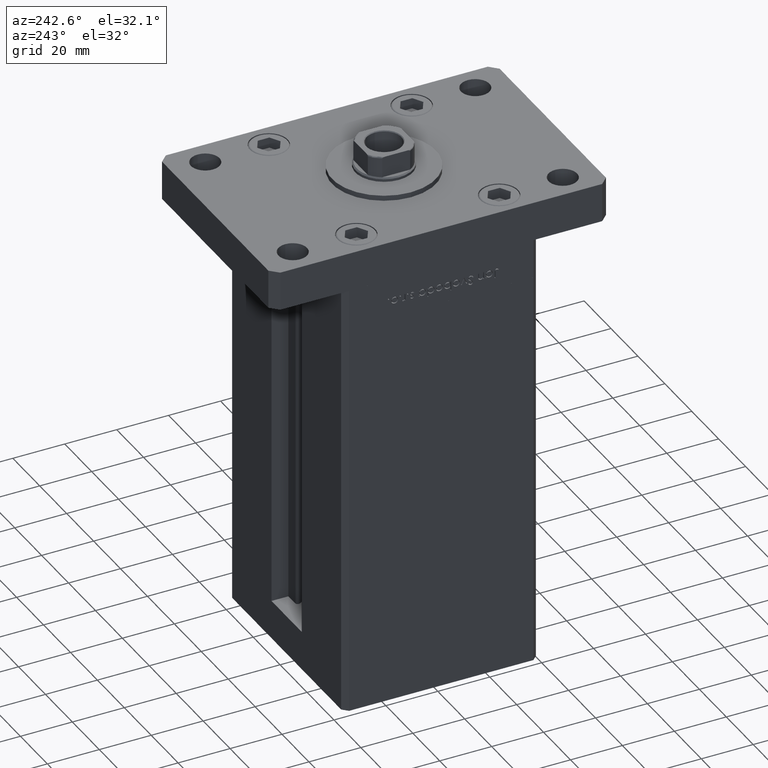
[diagram: clean part render]
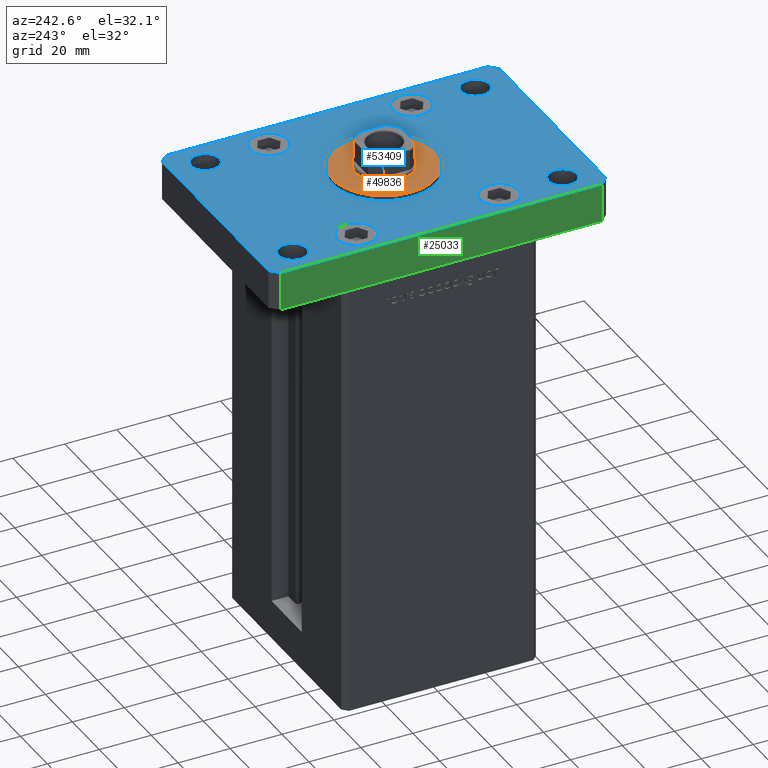
[diagram: same view with three faces highlighted in distinct colors, each labeled with its STEP entity id]
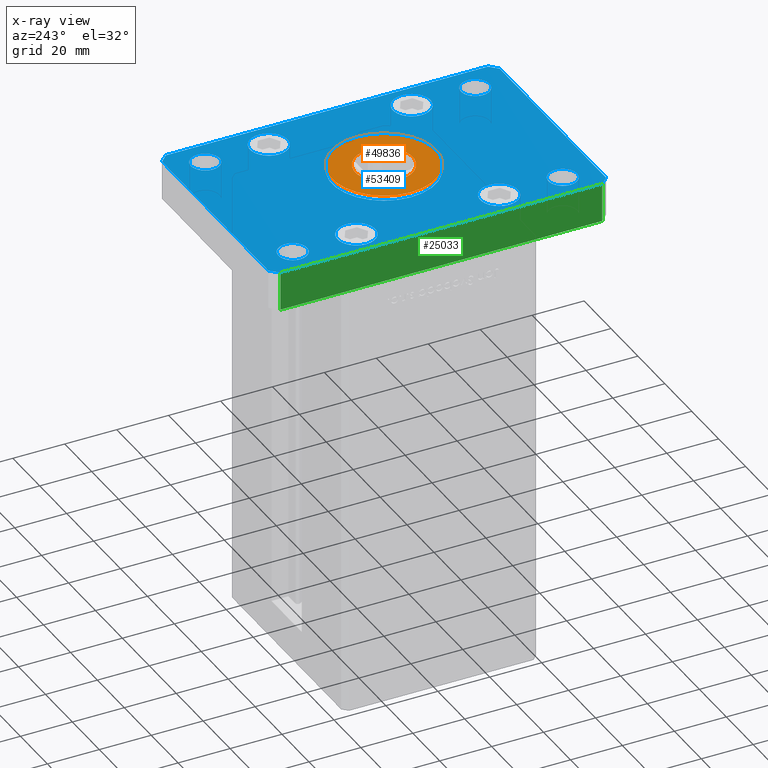
[diagram: x-ray of the same camera — body ghosted, the three highlighted faces saturated]
A machine part, auxiliary view with three faces highlighted in distinct colors.
The next image is the same camera in x-ray (body ghosted, the three faces saturated) — at least one of them is partly hidden behind the body in this view.
Their STEP definitions:

[orange] entity #49836 — the highlighted planar face has unit normal (0, 0, 1).
#1839 = DIRECTION ( 'NONE',  ( 1.000000000000000000, 0.000000000000000000, 0.000000000000000000 ) ) ;
#3969 = EDGE_CURVE ( 'NONE', #11316, #16303, #19559, .T. ) ;
#5047 = CARTESIAN_POINT ( 'NONE',  ( 0.000000000000000000, 0.000000000000000000, 17.00000000000000000 ) ) ;
#5620 = DIRECTION ( 'NONE',  ( 0.000000000000000000, 0.000000000000000000, 1.000000000000000000 ) ) ;
#8450 = CARTESIAN_POINT ( 'NONE',  ( 0.000000000000000000, 0.000000000000000000, 17.00000000000000000 ) ) ;
#9641 = AXIS2_PLACEMENT_3D ( 'NONE', #30692, #47220, #26620 ) ;
#10873 = AXIS2_PLACEMENT_3D ( 'NONE', #34671, #5620, #38727 ) ;
#11303 = VERTEX_POINT ( 'NONE', #46637 ) ;
#11316 = VERTEX_POINT ( 'NONE', #18143 ) ;
#11474 = CARTESIAN_POINT ( 'NONE',  ( 11.00000000000000000, 0.000000000000000000, 17.00000000000000000 ) ) ;
#11533 = EDGE_LOOP ( 'NONE', ( #14000, #23340 ) ) ;
#12253 = PLANE ( 'NONE',  #20652 ) ;
#12850 = EDGE_LOOP ( 'NONE', ( #46328, #25699 ) ) ;
#14000 = ORIENTED_EDGE ( 'NONE', *, *, #24984, .F. ) ;
#15807 = DIRECTION ( 'NONE',  ( 0.000000000000000000, 0.000000000000000000, 1.000000000000000000 ) ) ;
#16303 = VERTEX_POINT ( 'NONE', #11474 ) ;
#18143 = CARTESIAN_POINT ( 'NONE',  ( -11.00000000000000000, 1.347111479062088405E-15, 17.00000000000000000 ) ) ;
#19559 = CIRCLE ( 'NONE', #10873, 11.00000000000000000 ) ;
#20652 = AXIS2_PLACEMENT_3D ( 'NONE', #8450, #15807, #33419 ) ;
#22632 = CIRCLE ( 'NONE', #9641, 11.00000000000000000 ) ;
#23340 = ORIENTED_EDGE ( 'NONE', *, *, #3969, .F. ) ;
#23537 = CIRCLE ( 'NONE', #26977, 20.00000000000000000 ) ;
#24984 = EDGE_CURVE ( 'NONE', #16303, #11316, #22632, .T. ) ;
#25157 = DIRECTION ( 'NONE',  ( 1.000000000000000000, 0.000000000000000000, 0.000000000000000000 ) ) ;
#25401 = EDGE_CURVE ( 'NONE', #30827, #11303, #23537, .T. ) ;
#25417 = DIRECTION ( 'NONE',  ( 0.000000000000000000, 0.000000000000000000, 1.000000000000000000 ) ) ;
#25699 = ORIENTED_EDGE ( 'NONE', *, *, #37456, .T. ) ;
#26620 = DIRECTION ( 'NONE',  ( 1.000000000000000000, 0.000000000000000000, 0.000000000000000000 ) ) ;
#26977 = AXIS2_PLACEMENT_3D ( 'NONE', #5047, #25417, #25157 ) ;
#28968 = AXIS2_PLACEMENT_3D ( 'NONE', #43341, #42785, #1839 ) ;
#30692 = CARTESIAN_POINT ( 'NONE',  ( 0.000000000000000000, 0.000000000000000000, 17.00000000000000000 ) ) ;
#30827 = VERTEX_POINT ( 'NONE', #33535 ) ;
#32629 = FACE_OUTER_BOUND ( 'NONE', #12850, .T. ) ;
#33419 = DIRECTION ( 'NONE',  ( 1.000000000000000000, 0.000000000000000000, -0.000000000000000000 ) ) ;
#33535 = CARTESIAN_POINT ( 'NONE',  ( -20.00000000000000000, 0.000000000000000000, 17.00000000000000000 ) ) ;
#34671 = CARTESIAN_POINT ( 'NONE',  ( 0.000000000000000000, 0.000000000000000000, 17.00000000000000000 ) ) ;
#37456 = EDGE_CURVE ( 'NONE', #11303, #30827, #42828, .T. ) ;
#38727 = DIRECTION ( 'NONE',  ( 1.000000000000000000, 0.000000000000000000, 0.000000000000000000 ) ) ;
#42785 = DIRECTION ( 'NONE',  ( 0.000000000000000000, 0.000000000000000000, 1.000000000000000000 ) ) ;
#42828 = CIRCLE ( 'NONE', #28968, 20.00000000000000000 ) ;
#43341 = CARTESIAN_POINT ( 'NONE',  ( 0.000000000000000000, 0.000000000000000000, 17.00000000000000000 ) ) ;
#46328 = ORIENTED_EDGE ( 'NONE', *, *, #25401, .T. ) ;
#46637 = CARTESIAN_POINT ( 'NONE',  ( 20.00000000000000000, 2.449293598294706513E-15, 17.00000000000000000 ) ) ;
#47220 = DIRECTION ( 'NONE',  ( 0.000000000000000000, 0.000000000000000000, 1.000000000000000000 ) ) ;
#49836 = ADVANCED_FACE ( 'NONE', ( #53497, #32629 ), #12253, .T. ) ;
#53497 = FACE_BOUND ( 'NONE', #11533, .T. ) ;

[blue] entity #53409 — the highlighted planar face has unit normal (0, 0, 1).
#229 = LINE ( 'NONE', #12172, #40080 ) ;
#610 = FACE_BOUND ( 'NONE', #48539, .T. ) ;
#877 = FACE_BOUND ( 'NONE', #21882, .T. ) ;
#1103 = ORIENTED_EDGE ( 'NONE', *, *, #9711, .F. ) ;
#1421 = CIRCLE ( 'NONE', #50791, 7.249999999999999112 ) ;
#1469 = VERTEX_POINT ( 'NONE', #15718 ) ;
#1535 = ORIENTED_EDGE ( 'NONE', *, *, #31959, .F. ) ;
#1682 = DIRECTION ( 'NONE',  ( 0.000000000000000000, 0.000000000000000000, 1.000000000000000000 ) ) ;
#1955 = CARTESIAN_POINT ( 'NONE',  ( -26.99999999999998579, -52.00000000000000711, 15.00000000000000000 ) ) ;
#2109 = LINE ( 'NONE', #22191, #22864 ) ;
#2379 = EDGE_CURVE ( 'NONE', #17453, #31639, #40131, .T. ) ;
#2486 = EDGE_LOOP ( 'NONE', ( #20255, #27263 ) ) ;
#2552 = EDGE_CURVE ( 'NONE', #15432, #29417, #17856, .T. ) ;
#2767 = CARTESIAN_POINT ( 'NONE',  ( -39.75000000000000711, 27.50000000000000000, 15.00000000000000000 ) ) ;
#3219 = CIRCLE ( 'NONE', #33549, 7.249999999999999112 ) ;
#3872 = AXIS2_PLACEMENT_3D ( 'NONE', #48984, #31906, #11268 ) ;
#4175 = VECTOR ( 'NONE', #7944, 1000.000000000000000 ) ;
#4217 = ORIENTED_EDGE ( 'NONE', *, *, #13081, .F. ) ;
#4499 = EDGE_LOOP ( 'NONE', ( #30704, #36599 ) ) ;
#4662 = PLANE ( 'NONE',  #34509 ) ;
#4836 = CARTESIAN_POINT ( 'NONE',  ( 27.00000000000001421, 51.99999999999999289, 15.00000000000000000 ) ) ;
#4932 = FACE_BOUND ( 'NONE', #52975, .T. ) ;
#4978 = DIRECTION ( 'NONE',  ( 1.000000000000000000, 0.000000000000000000, 0.000000000000000000 ) ) ;
#4996 = CARTESIAN_POINT ( 'NONE',  ( 39.50000000000001421, -64.99999999999988631, 15.00000000000000000 ) ) ;
#6042 = CARTESIAN_POINT ( 'NONE',  ( 26.99999999999998579, -52.00000000000000711, 15.00000000000000000 ) ) ;
#6199 = DIRECTION ( 'NONE',  ( 1.000000000000000000, 0.000000000000000000, 0.000000000000000000 ) ) ;
#6274 = CARTESIAN_POINT ( 'NONE',  ( -32.49999999999997868, -52.00000000000000711, 15.00000000000000000 ) ) ;
#6325 = CARTESIAN_POINT ( 'NONE',  ( 32.49999999999997868, -52.00000000000000711, 15.00000000000000000 ) ) ;
#6693 = VERTEX_POINT ( 'NONE', #46938 ) ;
#7194 = CARTESIAN_POINT ( 'NONE',  ( 32.50000000000000000, -27.50000000000000000, 15.00000000000000000 ) ) ;
#7262 = CARTESIAN_POINT ( 'NONE',  ( 42.50000000000000000, 62.00000000000000711, 15.00000000000000000 ) ) ;
#7586 = VECTOR ( 'NONE', #45839, 1000.000000000000000 ) ;
#7665 = DIRECTION ( 'NONE',  ( 0.000000000000000000, 0.000000000000000000, 1.000000000000000000 ) ) ;
#7712 = CARTESIAN_POINT ( 'NONE',  ( 0.000000000000000000, 0.000000000000000000, 15.00000000000000000 ) ) ;
#7744 = VERTEX_POINT ( 'NONE', #4836 ) ;
#7926 = DIRECTION ( 'NONE',  ( 0.000000000000000000, 0.000000000000000000, 1.000000000000000000 ) ) ;
#7944 = DIRECTION ( 'NONE',  ( -0.7071067811865417996, 0.7071067811865532349, 0.000000000000000000 ) ) ;
#7965 = DIRECTION ( 'NONE',  ( 0.000000000000000000, 0.000000000000000000, 1.000000000000000000 ) ) ;
#8810 = ORIENTED_EDGE ( 'NONE', *, *, #53188, .T. ) ;
#9088 = CARTESIAN_POINT ( 'NONE',  ( 39.50000000000002842, 65.00000000000002842, 15.00000000000000000 ) ) ;
#9207 = ORIENTED_EDGE ( 'NONE', *, *, #2552, .T. ) ;
#9268 = FACE_BOUND ( 'NONE', #4499, .T. ) ;
#9437 = CARTESIAN_POINT ( 'NONE',  ( -42.50000000000002132, 62.00000000000000711, 15.00000000000000000 ) ) ;
#9618 = VERTEX_POINT ( 'NONE', #6042 ) ;
#9711 = EDGE_CURVE ( 'NONE', #31319, #6693, #1421, .T. ) ;
#10472 = DIRECTION ( 'NONE',  ( 1.000000000000000000, 0.000000000000000000, 0.000000000000000000 ) ) ;
#10687 = CIRCLE ( 'NONE', #41015, 7.249999999999999112 ) ;
#10934 = CARTESIAN_POINT ( 'NONE',  ( -32.50000000000000711, 27.50000000000000000, 15.00000000000000000 ) ) ;
#11268 = DIRECTION ( 'NONE',  ( 1.000000000000000000, 0.000000000000000000, 0.000000000000000000 ) ) ;
#11345 = ORIENTED_EDGE ( 'NONE', *, *, #31497, .T. ) ;
#11446 = CARTESIAN_POINT ( 'NONE',  ( 25.25000000000000000, 27.50000000000000000, 15.00000000000000000 ) ) ;
#11464 = CARTESIAN_POINT ( 'NONE',  ( -42.50000000000002132, 62.00000000000000711, 15.00000000000000000 ) ) ;
#11510 = CIRCLE ( 'NONE', #24498, 5.499999999999998224 ) ;
#11882 = CIRCLE ( 'NONE', #49151, 5.499999999999994671 ) ;
#11888 = CIRCLE ( 'NONE', #41357, 5.499999999999991118 ) ;
#11973 = EDGE_CURVE ( 'NONE', #9618, #26220, #16190, .T. ) ;
#12172 = CARTESIAN_POINT ( 'NONE',  ( 39.50000000000002842, 65.00000000000002842, 15.00000000000000000 ) ) ;
#12261 = CARTESIAN_POINT ( 'NONE',  ( -32.50000000000000000, -27.50000000000000000, 15.00000000000000000 ) ) ;
#12295 = EDGE_LOOP ( 'NONE', ( #24582, #8810, #11345, #40246, #21015, #24547, #9207, #46226 ) ) ;
#12523 = DIRECTION ( 'NONE',  ( 1.000000000000000000, 0.000000000000000000, 0.000000000000000000 ) ) ;
#13081 = EDGE_CURVE ( 'NONE', #17021, #37739, #11882, .T. ) ;
#13336 = DIRECTION ( 'NONE',  ( 0.000000000000000000, 0.000000000000000000, 1.000000000000000000 ) ) ;
#13510 = CARTESIAN_POINT ( 'NONE',  ( 25.25000000000000000, -27.50000000000000000, 15.00000000000000000 ) ) ;
#13653 = CIRCLE ( 'NONE', #27548, 5.499999999999994671 ) ;
#13838 = VERTEX_POINT ( 'NONE', #13510 ) ;
#14023 = AXIS2_PLACEMENT_3D ( 'NONE', #10934, #15557, #27780 ) ;
#14164 = CARTESIAN_POINT ( 'NONE',  ( -39.75000000000000000, -27.50000000000000000, 15.00000000000000000 ) ) ;
#14325 = CIRCLE ( 'NONE', #25601, 7.249999999999999112 ) ;
#14964 = VERTEX_POINT ( 'NONE', #7262 ) ;
#14982 = DIRECTION ( 'NONE',  ( 1.000000000000000000, 0.000000000000000000, 0.000000000000000000 ) ) ;
#15344 = CARTESIAN_POINT ( 'NONE',  ( -27.00000000000000711, 52.00000000000000000, 15.00000000000000000 ) ) ;
#15432 = VERTEX_POINT ( 'NONE', #11464 ) ;
#15557 = DIRECTION ( 'NONE',  ( 0.000000000000000000, 0.000000000000000000, 1.000000000000000000 ) ) ;
#15718 = CARTESIAN_POINT ( 'NONE',  ( -25.25000000000000711, 27.50000000000000000, 15.00000000000000000 ) ) ;
#15881 = CARTESIAN_POINT ( 'NONE',  ( -39.50000000000003553, 65.00000000000000000, 15.00000000000000000 ) ) ;
#16190 = CIRCLE ( 'NONE', #30057, 5.499999999999998224 ) ;
#16668 = DIRECTION ( 'NONE',  ( 1.000000000000000000, 0.000000000000000000, 0.000000000000000000 ) ) ;
#17021 = VERTEX_POINT ( 'NONE', #1955 ) ;
#17453 = VERTEX_POINT ( 'NONE', #51933 ) ;
#17546 = CARTESIAN_POINT ( 'NONE',  ( 37.99999999999999289, 51.99999999999999289, 15.00000000000000000 ) ) ;
#17622 = CIRCLE ( 'NONE', #23724, 5.499999999999991118 ) ;
#17856 = LINE ( 'NONE', #9437, #42900 ) ;
#17908 = CARTESIAN_POINT ( 'NONE',  ( 32.50000000000000000, -27.50000000000000000, 15.00000000000000000 ) ) ;
#18224 = CIRCLE ( 'NONE', #48565, 7.249999999999999112 ) ;
#18547 = VERTEX_POINT ( 'NONE', #9088 ) ;
#18615 = DIRECTION ( 'NONE',  ( 0.000000000000000000, 0.000000000000000000, 1.000000000000000000 ) ) ;
#18898 = VECTOR ( 'NONE', #21567, 1000.000000000000114 ) ;
#19301 = CARTESIAN_POINT ( 'NONE',  ( -32.50000000000000000, 52.00000000000000000, 15.00000000000000000 ) ) ;
#19511 = ORIENTED_EDGE ( 'NONE', *, *, #51867, .F. ) ;
#19663 = VERTEX_POINT ( 'NONE', #17546 ) ;
#19901 = CIRCLE ( 'NONE', #45880, 5.499999999999994671 ) ;
#20148 = EDGE_CURVE ( 'NONE', #50243, #29368, #19901, .T. ) ;
#20171 = DIRECTION ( 'NONE',  ( 0.000000000000000000, 0.000000000000000000, 1.000000000000000000 ) ) ;
#20255 = ORIENTED_EDGE ( 'NONE', *, *, #37165, .F. ) ;
#20349 = LINE ( 'NONE', #40963, #7586 ) ;
#20495 = LINE ( 'NONE', #28892, #26056 ) ;
#20559 = CARTESIAN_POINT ( 'NONE',  ( 37.99999999999997868, -52.00000000000000711, 15.00000000000000000 ) ) ;
#21015 = ORIENTED_EDGE ( 'NONE', *, *, #32722, .T. ) ;
#21038 = ORIENTED_EDGE ( 'NONE', *, *, #45240, .F. ) ;
#21115 = CARTESIAN_POINT ( 'NONE',  ( 20.00000000000000000, 2.449293598294706513E-15, 15.00000000000000000 ) ) ;
#21567 = DIRECTION ( 'NONE',  ( 0.7071067811865459074, 0.7071067811865491270, 0.000000000000000000 ) ) ;
#21776 = VERTEX_POINT ( 'NONE', #47891 ) ;
#21882 = EDGE_LOOP ( 'NONE', ( #19511, #47128 ) ) ;
#22040 = CIRCLE ( 'NONE', #45430, 20.00000000000000000 ) ;
#22051 = DIRECTION ( 'NONE',  ( 0.000000000000000000, 0.000000000000000000, 1.000000000000000000 ) ) ;
#22191 = CARTESIAN_POINT ( 'NONE',  ( 42.50000000000000000, -61.99999999999988631, 15.00000000000000000 ) ) ;
#22523 = DIRECTION ( 'NONE',  ( 1.000000000000000000, 0.000000000000000000, 0.000000000000000000 ) ) ;
#22567 = DIRECTION ( 'NONE',  ( 1.000000000000000000, 0.000000000000000000, 0.000000000000000000 ) ) ;
#22703 = EDGE_CURVE ( 'NONE', #21776, #13838, #18224, .T. ) ;
#22864 = VECTOR ( 'NONE', #42795, 1000.000000000000000 ) ;
#22881 = DIRECTION ( 'NONE',  ( 0.000000000000000000, 0.000000000000000000, 1.000000000000000000 ) ) ;
#23447 = EDGE_CURVE ( 'NONE', #39179, #15432, #20495, .T. ) ;
#23724 = AXIS2_PLACEMENT_3D ( 'NONE', #42658, #22051, #37516 ) ;
#23760 = DIRECTION ( 'NONE',  ( 0.000000000000000000, 0.000000000000000000, 1.000000000000000000 ) ) ;
#23837 = CIRCLE ( 'NONE', #3872, 7.249999999999999112 ) ;
#24498 = AXIS2_PLACEMENT_3D ( 'NONE', #35237, #50972, #6199 ) ;
#24532 = DIRECTION ( 'NONE',  ( 1.000000000000000000, 0.000000000000000000, 0.000000000000000000 ) ) ;
#24547 = ORIENTED_EDGE ( 'NONE', *, *, #23447, .T. ) ;
#24582 = ORIENTED_EDGE ( 'NONE', *, *, #2379, .T. ) ;
#25601 = AXIS2_PLACEMENT_3D ( 'NONE', #12261, #7665, #12523 ) ;
#25617 = CARTESIAN_POINT ( 'NONE',  ( 32.50000000000000000, 51.99999999999999289, 15.00000000000000000 ) ) ;
#26056 = VECTOR ( 'NONE', #45437, 1000.000000000000000 ) ;
#26220 = VERTEX_POINT ( 'NONE', #20559 ) ;
#26317 = DIRECTION ( 'NONE',  ( 1.000000000000000000, 0.000000000000000000, 0.000000000000000000 ) ) ;
#26434 = ORIENTED_EDGE ( 'NONE', *, *, #22703, .F. ) ;
#26827 = EDGE_CURVE ( 'NONE', #1469, #42604, #33098, .T. ) ;
#27263 = ORIENTED_EDGE ( 'NONE', *, *, #48686, .F. ) ;
#27548 = AXIS2_PLACEMENT_3D ( 'NONE', #48464, #18615, #10472 ) ;
#27780 = DIRECTION ( 'NONE',  ( 1.000000000000000000, 0.000000000000000000, 0.000000000000000000 ) ) ;
#27960 = CARTESIAN_POINT ( 'NONE',  ( 42.50000000000000000, -61.99999999999988631, 15.00000000000000000 ) ) ;
#27987 = DIRECTION ( 'NONE',  ( 1.000000000000000000, 0.000000000000000000, 0.000000000000000000 ) ) ;
#28089 = EDGE_LOOP ( 'NONE', ( #30729, #39513 ) ) ;
#28288 = CARTESIAN_POINT ( 'NONE',  ( -32.50000000000000000, -27.50000000000000000, 15.00000000000000000 ) ) ;
#28892 = CARTESIAN_POINT ( 'NONE',  ( -39.50000000000003553, 65.00000000000000000, 15.00000000000000000 ) ) ;
#29199 = CARTESIAN_POINT ( 'NONE',  ( 39.50000000000001421, -64.99999999999988631, 15.00000000000000000 ) ) ;
#29204 = CIRCLE ( 'NONE', #38728, 7.249999999999999112 ) ;
#29316 = EDGE_CURVE ( 'NONE', #26220, #9618, #11510, .T. ) ;
#29360 = CARTESIAN_POINT ( 'NONE',  ( -32.49999999999997868, -52.00000000000000711, 15.00000000000000000 ) ) ;
#29368 = VERTEX_POINT ( 'NONE', #52577 ) ;
#29417 = VERTEX_POINT ( 'NONE', #49058 ) ;
#29640 = CARTESIAN_POINT ( 'NONE',  ( 0.000000000000000000, 0.000000000000000000, 15.00000000000000000 ) ) ;
#29738 = ORIENTED_EDGE ( 'NONE', *, *, #51204, .F. ) ;
#29909 = DIRECTION ( 'NONE',  ( 1.000000000000000000, 0.000000000000000000, -0.000000000000000000 ) ) ;
#30057 = AXIS2_PLACEMENT_3D ( 'NONE', #6325, #22881, #39419 ) ;
#30452 = FACE_OUTER_BOUND ( 'NONE', #12295, .T. ) ;
#30704 = ORIENTED_EDGE ( 'NONE', *, *, #45713, .F. ) ;
#30729 = ORIENTED_EDGE ( 'NONE', *, *, #11973, .F. ) ;
#31225 = EDGE_CURVE ( 'NONE', #19663, #7744, #17622, .T. ) ;
#31319 = VERTEX_POINT ( 'NONE', #14164 ) ;
#31497 = EDGE_CURVE ( 'NONE', #46885, #14964, #2109, .T. ) ;
#31639 = VERTEX_POINT ( 'NONE', #29199 ) ;
#31660 = AXIS2_PLACEMENT_3D ( 'NONE', #29360, #7926, #49446 ) ;
#31890 = CIRCLE ( 'NONE', #50071, 20.00000000000000000 ) ;
#31906 = DIRECTION ( 'NONE',  ( 0.000000000000000000, 0.000000000000000000, 1.000000000000000000 ) ) ;
#31959 = EDGE_CURVE ( 'NONE', #40319, #33261, #10687, .T. ) ;
#32385 = CARTESIAN_POINT ( 'NONE',  ( 42.50000000000000000, 62.00000000000000711, 15.00000000000000000 ) ) ;
#32722 = EDGE_CURVE ( 'NONE', #18547, #39179, #229, .T. ) ;
#32810 = DIRECTION ( 'NONE',  ( -1.000000000000000000, -3.513364001978340512E-16, 0.000000000000000000 ) ) ;
#32880 = VERTEX_POINT ( 'NONE', #21115 ) ;
#32925 = LINE ( 'NONE', #32385, #4175 ) ;
#33098 = CIRCLE ( 'NONE', #14023, 7.249999999999999112 ) ;
#33210 = DIRECTION ( 'NONE',  ( 1.000000000000000000, 0.000000000000000000, 0.000000000000000000 ) ) ;
#33261 = VERTEX_POINT ( 'NONE', #11446 ) ;
#33549 = AXIS2_PLACEMENT_3D ( 'NONE', #48428, #7965, #24532 ) ;
#33981 = FACE_BOUND ( 'NONE', #47466, .T. ) ;
#34509 = AXIS2_PLACEMENT_3D ( 'NONE', #29640, #13336, #29909 ) ;
#34522 = FACE_BOUND ( 'NONE', #2486, .T. ) ;
#34683 = DIRECTION ( 'NONE',  ( 2.238352872228137677E-16, -1.000000000000000000, 0.000000000000000000 ) ) ;
#34923 = CARTESIAN_POINT ( 'NONE',  ( -20.00000000000000000, 0.000000000000000000, 15.00000000000000000 ) ) ;
#35237 = CARTESIAN_POINT ( 'NONE',  ( 32.49999999999997868, -52.00000000000000711, 15.00000000000000000 ) ) ;
#35789 = EDGE_LOOP ( 'NONE', ( #21038, #26434 ) ) ;
#36599 = ORIENTED_EDGE ( 'NONE', *, *, #26827, .F. ) ;
#36677 = DIRECTION ( 'NONE',  ( 0.000000000000000000, 0.000000000000000000, 1.000000000000000000 ) ) ;
#36738 = CARTESIAN_POINT ( 'NONE',  ( 32.50000000000000000, 27.50000000000000000, 15.00000000000000000 ) ) ;
#37010 = DIRECTION ( 'NONE',  ( 0.000000000000000000, 0.000000000000000000, 1.000000000000000000 ) ) ;
#37043 = CARTESIAN_POINT ( 'NONE',  ( 39.75000000000000000, 27.50000000000000000, 15.00000000000000000 ) ) ;
#37080 = EDGE_LOOP ( 'NONE', ( #1103, #47150 ) ) ;
#37165 = EDGE_CURVE ( 'NONE', #44574, #32880, #22040, .T. ) ;
#37516 = DIRECTION ( 'NONE',  ( 1.000000000000000000, 0.000000000000000000, 0.000000000000000000 ) ) ;
#37739 = VERTEX_POINT ( 'NONE', #51396 ) ;
#38728 = AXIS2_PLACEMENT_3D ( 'NONE', #17908, #43405, #22523 ) ;
#39174 = EDGE_CURVE ( 'NONE', #33261, #40319, #23837, .T. ) ;
#39179 = VERTEX_POINT ( 'NONE', #15881 ) ;
#39419 = DIRECTION ( 'NONE',  ( 1.000000000000000000, 0.000000000000000000, 0.000000000000000000 ) ) ;
#39513 = ORIENTED_EDGE ( 'NONE', *, *, #29316, .F. ) ;
#39615 = EDGE_CURVE ( 'NONE', #37739, #17021, #48069, .T. ) ;
#39617 = EDGE_CURVE ( 'NONE', #6693, #31319, #14325, .T. ) ;
#39867 = DIRECTION ( 'NONE',  ( 1.000000000000000000, 1.405345600791337191E-15, 0.000000000000000000 ) ) ;
#40080 = VECTOR ( 'NONE', #32810, 1000.000000000000000 ) ;
#40131 = LINE ( 'NONE', #52084, #42041 ) ;
#40246 = ORIENTED_EDGE ( 'NONE', *, *, #53345, .T. ) ;
#40319 = VERTEX_POINT ( 'NONE', #37043 ) ;
#40580 = ORIENTED_EDGE ( 'NONE', *, *, #39615, .F. ) ;
#40963 = CARTESIAN_POINT ( 'NONE',  ( -42.49999999999999289, -62.00000000000001421, 15.00000000000000000 ) ) ;
#41015 = AXIS2_PLACEMENT_3D ( 'NONE', #36738, #37010, #33210 ) ;
#41357 = AXIS2_PLACEMENT_3D ( 'NONE', #25617, #42146, #4978 ) ;
#41834 = FACE_BOUND ( 'NONE', #28089, .T. ) ;
#42041 = VECTOR ( 'NONE', #39867, 1000.000000000000000 ) ;
#42146 = DIRECTION ( 'NONE',  ( 0.000000000000000000, 0.000000000000000000, 1.000000000000000000 ) ) ;
#42169 = LINE ( 'NONE', #4996, #18898 ) ;
#42604 = VERTEX_POINT ( 'NONE', #2767 ) ;
#42658 = CARTESIAN_POINT ( 'NONE',  ( 32.50000000000000000, 51.99999999999999289, 15.00000000000000000 ) ) ;
#42795 = DIRECTION ( 'NONE',  ( 0.000000000000000000, 1.000000000000000000, 0.000000000000000000 ) ) ;
#42900 = VECTOR ( 'NONE', #34683, 1000.000000000000000 ) ;
#43405 = DIRECTION ( 'NONE',  ( 0.000000000000000000, 0.000000000000000000, 1.000000000000000000 ) ) ;
#43455 = DIRECTION ( 'NONE',  ( 0.000000000000000000, 0.000000000000000000, 1.000000000000000000 ) ) ;
#44574 = VERTEX_POINT ( 'NONE', #34923 ) ;
#45240 = EDGE_CURVE ( 'NONE', #13838, #21776, #29204, .T. ) ;
#45430 = AXIS2_PLACEMENT_3D ( 'NONE', #46922, #20171, #26317 ) ;
#45437 = DIRECTION ( 'NONE',  ( -0.7071067811865466846, -0.7071067811865483499, 0.000000000000000000 ) ) ;
#45713 = EDGE_CURVE ( 'NONE', #42604, #1469, #3219, .T. ) ;
#45839 = DIRECTION ( 'NONE',  ( 0.7071067811865483499, -0.7071067811865466846, 0.000000000000000000 ) ) ;
#45880 = AXIS2_PLACEMENT_3D ( 'NONE', #19301, #43455, #27987 ) ;
#46081 = ORIENTED_EDGE ( 'NONE', *, *, #31225, .F. ) ;
#46226 = ORIENTED_EDGE ( 'NONE', *, *, #50792, .T. ) ;
#46450 = FACE_BOUND ( 'NONE', #35789, .T. ) ;
#46885 = VERTEX_POINT ( 'NONE', #27960 ) ;
#46922 = CARTESIAN_POINT ( 'NONE',  ( 0.000000000000000000, 0.000000000000000000, 15.00000000000000000 ) ) ;
#46938 = CARTESIAN_POINT ( 'NONE',  ( -25.25000000000000000, -27.50000000000000000, 15.00000000000000000 ) ) ;
#47128 = ORIENTED_EDGE ( 'NONE', *, *, #20148, .F. ) ;
#47150 = ORIENTED_EDGE ( 'NONE', *, *, #39617, .F. ) ;
#47466 = EDGE_LOOP ( 'NONE', ( #40580, #4217 ) ) ;
#47891 = CARTESIAN_POINT ( 'NONE',  ( 39.75000000000000000, -27.50000000000000000, 15.00000000000000000 ) ) ;
#48069 = CIRCLE ( 'NONE', #31660, 5.499999999999994671 ) ;
#48428 = CARTESIAN_POINT ( 'NONE',  ( -32.50000000000000711, 27.50000000000000000, 15.00000000000000000 ) ) ;
#48464 = CARTESIAN_POINT ( 'NONE',  ( -32.50000000000000000, 52.00000000000000000, 15.00000000000000000 ) ) ;
#48539 = EDGE_LOOP ( 'NONE', ( #51727, #1535 ) ) ;
#48565 = AXIS2_PLACEMENT_3D ( 'NONE', #7194, #23760, #16668 ) ;
#48686 = EDGE_CURVE ( 'NONE', #32880, #44574, #31890, .T. ) ;
#48965 = DIRECTION ( 'NONE',  ( 1.000000000000000000, 0.000000000000000000, 0.000000000000000000 ) ) ;
#48984 = CARTESIAN_POINT ( 'NONE',  ( 32.50000000000000000, 27.50000000000000000, 15.00000000000000000 ) ) ;
#49058 = CARTESIAN_POINT ( 'NONE',  ( -42.49999999999999289, -62.00000000000001421, 15.00000000000000000 ) ) ;
#49151 = AXIS2_PLACEMENT_3D ( 'NONE', #6274, #1682, #22567 ) ;
#49446 = DIRECTION ( 'NONE',  ( 1.000000000000000000, 0.000000000000000000, 0.000000000000000000 ) ) ;
#50071 = AXIS2_PLACEMENT_3D ( 'NONE', #7712, #53282, #48965 ) ;
#50243 = VERTEX_POINT ( 'NONE', #15344 ) ;
#50512 = FACE_BOUND ( 'NONE', #37080, .T. ) ;
#50791 = AXIS2_PLACEMENT_3D ( 'NONE', #28288, #36677, #14982 ) ;
#50792 = EDGE_CURVE ( 'NONE', #29417, #17453, #20349, .T. ) ;
#50972 = DIRECTION ( 'NONE',  ( 0.000000000000000000, 0.000000000000000000, 1.000000000000000000 ) ) ;
#51204 = EDGE_CURVE ( 'NONE', #7744, #19663, #11888, .T. ) ;
#51396 = CARTESIAN_POINT ( 'NONE',  ( -37.99999999999997868, -52.00000000000000711, 15.00000000000000000 ) ) ;
#51727 = ORIENTED_EDGE ( 'NONE', *, *, #39174, .F. ) ;
#51867 = EDGE_CURVE ( 'NONE', #29368, #50243, #13653, .T. ) ;
#51933 = CARTESIAN_POINT ( 'NONE',  ( -39.50000000000000000, -65.00000000000000000, 15.00000000000000000 ) ) ;
#52084 = CARTESIAN_POINT ( 'NONE',  ( -39.50000000000000000, -65.00000000000000000, 15.00000000000000000 ) ) ;
#52577 = CARTESIAN_POINT ( 'NONE',  ( -38.00000000000000000, 52.00000000000000000, 15.00000000000000000 ) ) ;
#52975 = EDGE_LOOP ( 'NONE', ( #29738, #46081 ) ) ;
#53188 = EDGE_CURVE ( 'NONE', #31639, #46885, #42169, .T. ) ;
#53282 = DIRECTION ( 'NONE',  ( 0.000000000000000000, 0.000000000000000000, 1.000000000000000000 ) ) ;
#53345 = EDGE_CURVE ( 'NONE', #14964, #18547, #32925, .T. ) ;
#53409 = ADVANCED_FACE ( 'NONE', ( #34522, #9268, #46450, #877, #33981, #30452, #4932, #50512, #610, #41834 ), #4662, .T. ) ;

[green] entity #25033 — the highlighted planar face has unit normal (1, 0, 0).
#2552 = EDGE_CURVE ( 'NONE', #15432, #29417, #17856, .T. ) ;
#3782 = DIRECTION ( 'NONE',  ( 1.000000000000000000, 2.238352872228137677E-16, -0.000000000000000000 ) ) ;
#3884 = EDGE_LOOP ( 'NONE', ( #38017, #28215, #13489, #7036 ) ) ;
#4012 = EDGE_CURVE ( 'NONE', #29417, #48338, #47411, .T. ) ;
#6970 = CARTESIAN_POINT ( 'NONE',  ( -42.49999999999999289, -62.00000000000001421, 15.00000000000000000 ) ) ;
#7036 = ORIENTED_EDGE ( 'NONE', *, *, #47842, .T. ) ;
#9437 = CARTESIAN_POINT ( 'NONE',  ( -42.50000000000002132, 62.00000000000000711, 15.00000000000000000 ) ) ;
#11464 = CARTESIAN_POINT ( 'NONE',  ( -42.50000000000002132, 62.00000000000000711, 15.00000000000000000 ) ) ;
#12194 = FACE_OUTER_BOUND ( 'NONE', #3884, .T. ) ;
#13489 = ORIENTED_EDGE ( 'NONE', *, *, #2552, .F. ) ;
#14025 = LINE ( 'NONE', #26521, #17891 ) ;
#14330 = VERTEX_POINT ( 'NONE', #26761 ) ;
#15432 = VERTEX_POINT ( 'NONE', #11464 ) ;
#16945 = DIRECTION ( 'NONE',  ( -2.238352872228137677E-16, 1.000000000000000000, 0.000000000000000000 ) ) ;
#17856 = LINE ( 'NONE', #9437, #42900 ) ;
#17891 = VECTOR ( 'NONE', #30592, 1000.000000000000000 ) ;
#19539 = PLANE ( 'NONE',  #50350 ) ;
#19760 = VECTOR ( 'NONE', #33640, 1000.000000000000000 ) ;
#20889 = LINE ( 'NONE', #25765, #19760 ) ;
#25033 = ADVANCED_FACE ( 'NONE', ( #12194 ), #19539, .F. ) ;
#25765 = CARTESIAN_POINT ( 'NONE',  ( -42.50000000000002132, 62.00000000000000711, 15.00000000000000000 ) ) ;
#26521 = CARTESIAN_POINT ( 'NONE',  ( -42.50000000000002132, 62.00000000000000711, 0.000000000000000000 ) ) ;
#26761 = CARTESIAN_POINT ( 'NONE',  ( -42.50000000000002132, 62.00000000000000711, 0.000000000000000000 ) ) ;
#28215 = ORIENTED_EDGE ( 'NONE', *, *, #4012, .F. ) ;
#28225 = CARTESIAN_POINT ( 'NONE',  ( -42.50000000000002132, 62.00000000000000711, 15.00000000000000000 ) ) ;
#29417 = VERTEX_POINT ( 'NONE', #49058 ) ;
#29934 = VECTOR ( 'NONE', #48755, 1000.000000000000000 ) ;
#30592 = DIRECTION ( 'NONE',  ( 2.238352872228137677E-16, -1.000000000000000000, 0.000000000000000000 ) ) ;
#33640 = DIRECTION ( 'NONE',  ( -0.000000000000000000, -0.000000000000000000, -1.000000000000000000 ) ) ;
#34683 = DIRECTION ( 'NONE',  ( 2.238352872228137677E-16, -1.000000000000000000, 0.000000000000000000 ) ) ;
#38017 = ORIENTED_EDGE ( 'NONE', *, *, #44559, .T. ) ;
#39502 = CARTESIAN_POINT ( 'NONE',  ( -42.49999999999999289, -62.00000000000001421, 0.000000000000000000 ) ) ;
#42900 = VECTOR ( 'NONE', #34683, 1000.000000000000000 ) ;
#44559 = EDGE_CURVE ( 'NONE', #14330, #48338, #14025, .T. ) ;
#47411 = LINE ( 'NONE', #6970, #29934 ) ;
#47842 = EDGE_CURVE ( 'NONE', #15432, #14330, #20889, .T. ) ;
#48338 = VERTEX_POINT ( 'NONE', #39502 ) ;
#48755 = DIRECTION ( 'NONE',  ( -0.000000000000000000, -0.000000000000000000, -1.000000000000000000 ) ) ;
#49058 = CARTESIAN_POINT ( 'NONE',  ( -42.49999999999999289, -62.00000000000001421, 15.00000000000000000 ) ) ;
#50350 = AXIS2_PLACEMENT_3D ( 'NONE', #28225, #3782, #16945 ) ;